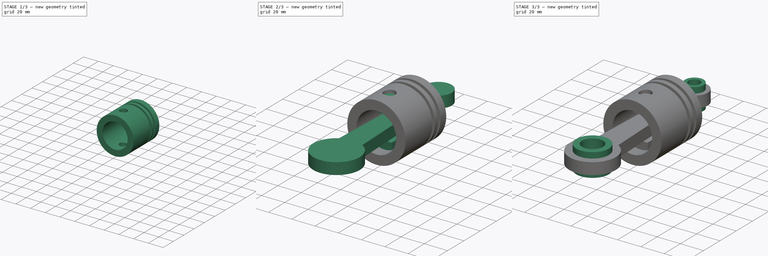
[diagram: build sequence overview — one tinted view per stage of 3, left to right]
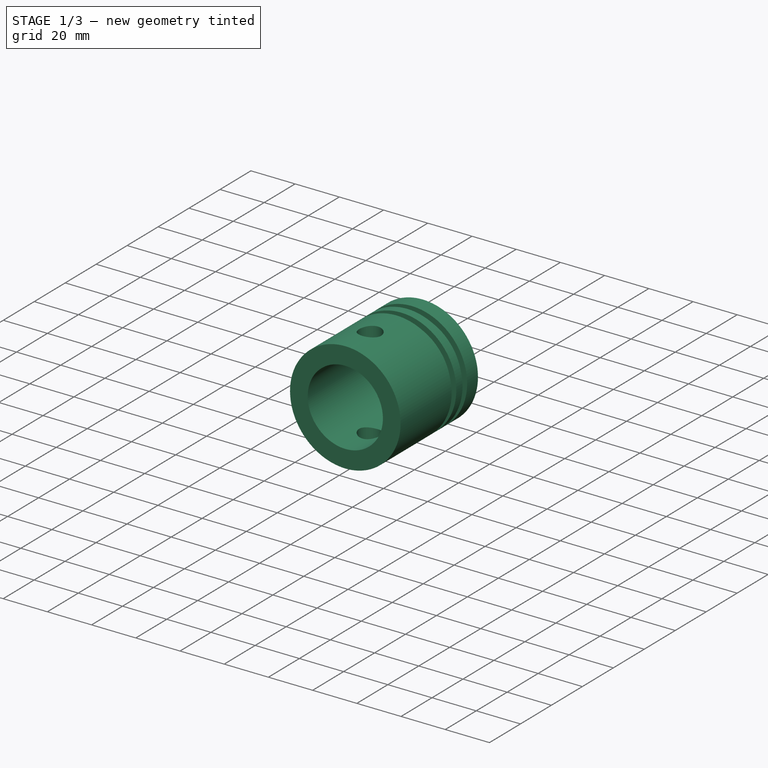
[diagram: stage 1 of 3 — iso view after this stage's code; geometry added in this stage tinted green]
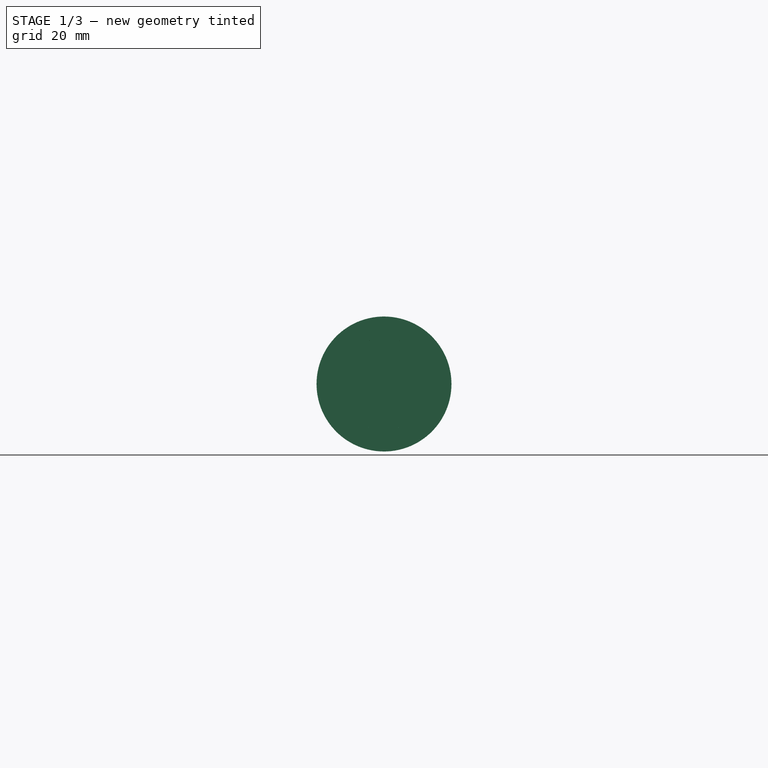
[diagram: stage 1 of 3 — front view after this stage's code; geometry added in this stage tinted green]
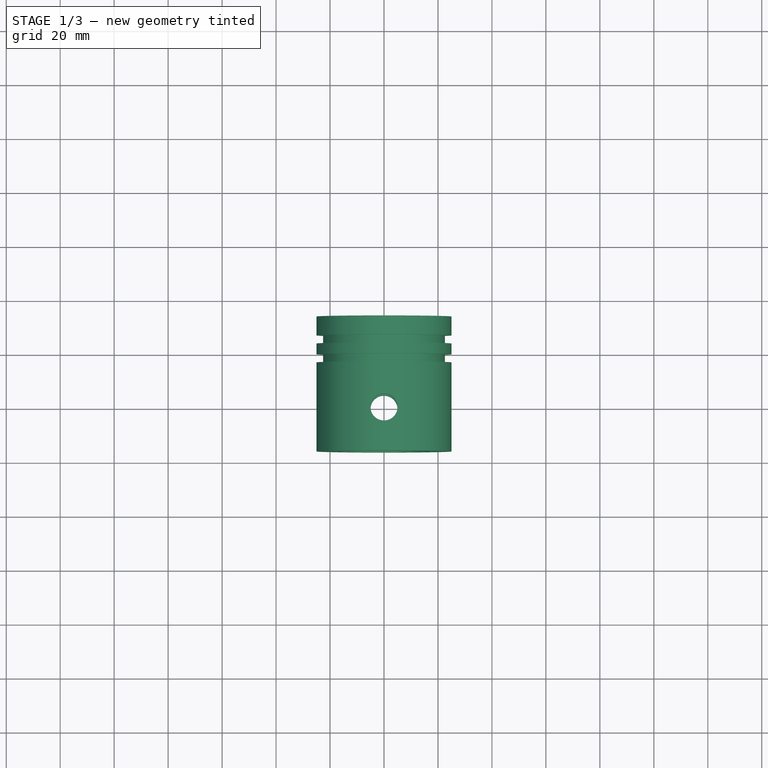
[diagram: stage 1 of 3 — top view after this stage's code; geometry added in this stage tinted green]
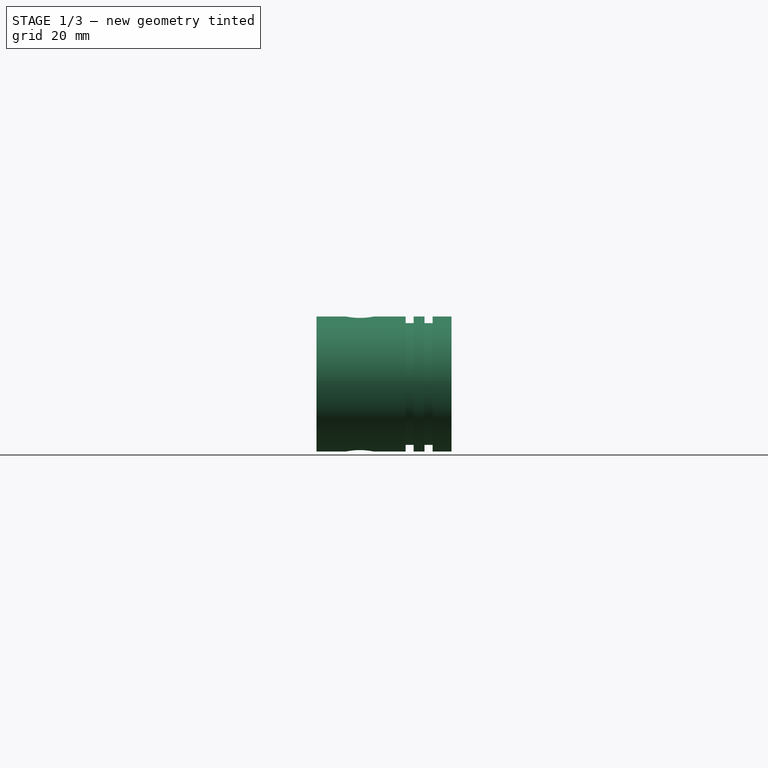
[diagram: stage 1 of 3 — right view after this stage's code; geometry added in this stage tinted green]
FCSTD DOCUMENT  (FreeCAD 0.19R24267 +148 (Git))
Label: Piston 2
License: All rights reserved
LicenseURL: http://en.wikipedia.org/wiki/All_rights_reserved
objects: Sketcher::SketchObject×7, PartDesign::Pocket×3, PartDesign::Pad×3, PartDesign::Plane×2, PartDesign::Body×2, PartDesign::Revolution×1
note: 25 computed .brp shape members not serialized (recipe doc carries the construction recipe); baked Part::Feature solids carry a one-line shape summary decoded from their .brp

FEATURE [Sketcher::SketchObject] Sketch
  FullyConstrained = false
  MapMode = 5
  Support = -> [XY_Plane]
  sketch-geometry (14):
    g0: LineSegment StartX=-17 StartY=-16.0624 StartZ=0 EndX=-25 EndY=-16.0624 EndZ=0
    g1: LineSegment StartX=-25 StartY=-16.0624 StartZ=0 EndX=-25 EndY=16.9376 EndZ=0
    g2: LineSegment StartX=-25 StartY=33.9376 StartZ=0 EndX=3.6e-15 EndY=33.9376 EndZ=0
    g3: LineSegment StartX=3.6e-15 StartY=33.9376 StartZ=0 EndX=3.6e-15 EndY=27.9376 EndZ=0
    g4: LineSegment StartX=-25 StartY=26.9376 StartZ=0 EndX=-22.5558 EndY=26.9376 EndZ=0
    g5: LineSegment StartX=-22.5558 StartY=26.9376 StartZ=0 EndX=-22.5558 EndY=23.9376 EndZ=0
    g6: LineSegment StartX=-22.5558 StartY=23.9376 StartZ=0 EndX=-25 EndY=23.9376 EndZ=0
    g7: LineSegment StartX=-25 StartY=19.9376 StartZ=0 EndX=-22.5558 EndY=19.9376 EndZ=0
    g8: LineSegment StartX=-22.5558 StartY=19.9376 StartZ=0 EndX=-22.5558 EndY=16.9376 EndZ=0
    g9: LineSegment StartX=-22.5558 StartY=16.9376 StartZ=0 EndX=-25 EndY=16.9376 EndZ=0
    g10: LineSegment StartX=-17 StartY=-16.0624 StartZ=0 EndX=-17 EndY=27.9376 EndZ=0
    g11: LineSegment StartX=-17 StartY=27.9376 StartZ=0 EndX=3.6e-15 EndY=27.9376 EndZ=0
    g12: LineSegment StartX=-25 StartY=26.9376 StartZ=0 EndX=-25 EndY=33.9376 EndZ=0
    g13: LineSegment StartX=-25 StartY=19.9376 StartZ=0 EndX=-25 EndY=23.9376 EndZ=0
  constraints (37):
    c: Coincident(g0,g1)
    c: Coincident(g12,g2)
    c: Coincident(g2,g3)
    c: Horizontal(g0)
    c: Horizontal(g2)
    c: Vertical(g1)
    c: Vertical(g3)
    c: Distance(g1) = 33
    c: Distance(g2) = 25
    c: Coincident(g4,g5)
    c: Coincident(g5,g6)
    c: Horizontal(g4)
    c: Horizontal(g6)
    c: Vertical(g5)
    c: Coincident(g7,g8)
    c: Coincident(g8,g9)
    c: Horizontal(g7)
    c: Horizontal(g9)
    c: Vertical(g8)
    c: Vertical(g5,g7)
    c: Distance(g5) = 3
    c: Distance(g8) = 3
    c: Coincident(g10,g11)
    c: Horizontal(g11)
    c: Vertical(g10)
    c: Coincident(g10,g0)
    c: Coincident(g11,g3)
    c: Coincident(g13,g6)
    c: Coincident(g12,g4)
    c: Tangent(g1,g12)
    c: Coincident(g1,g9)
    c: Coincident(g13,g7)
    c: Tangent(g1,g13)
    c: DistanceX(g0,g-1) = 17
    c: Distance(g3) = 6
    c: DistanceY(g0,g2) = 50
    c: Distance(g13) = 4
FEATURE [PartDesign::Revolution] Revolution
  Angle = 360
  Axis = (0,1,0)
  Base = (0,0,0)
  Profile = -> Sketch
  ReferenceAxis = -> Sketch [V_Axis]
FEATURE [Sketcher::SketchObject] Sketch001
  FullyConstrained = true
  MapMode = 5
  Support = -> [XY_Plane]
  sketch-geometry (1):
    g0: Circle CenterX=0 CenterY=0 CenterZ=0 NormalX=0 NormalY=0 NormalZ=1 AngleXU=0 Radius=5
  constraints (2):
    c: Coincident(g0,g-1)
    c: Diameter(g0) = 10
FEATURE [PartDesign::Pocket] Pocket
  BaseFeature = -> Revolution
  Length = 80
  Length2 = 100
  Midplane = true
  Profile = -> Sketch001
  Reversed = true
  Type = 1
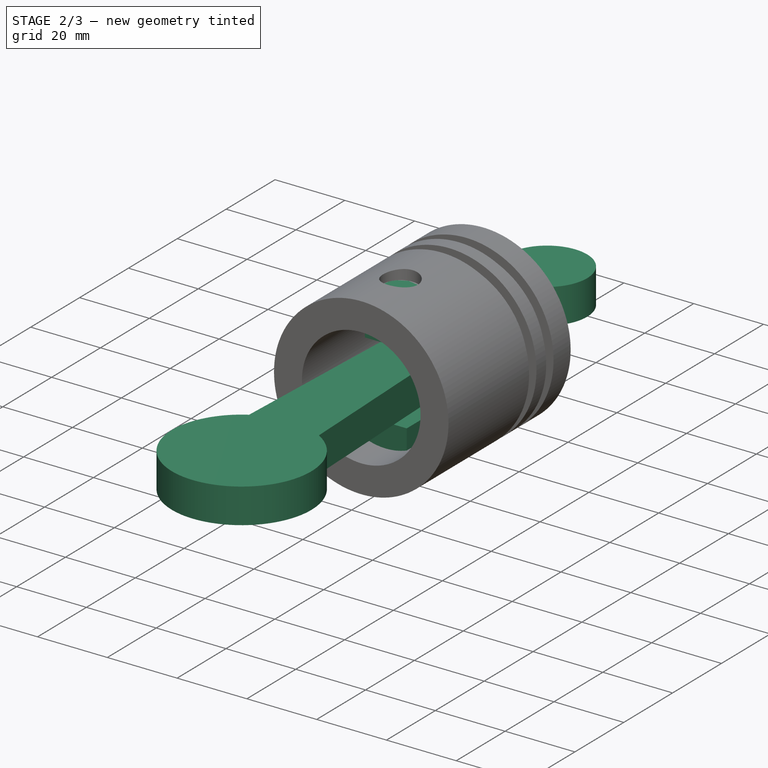
[diagram: stage 2 of 3 — iso view after this stage's code; geometry added in this stage tinted green]
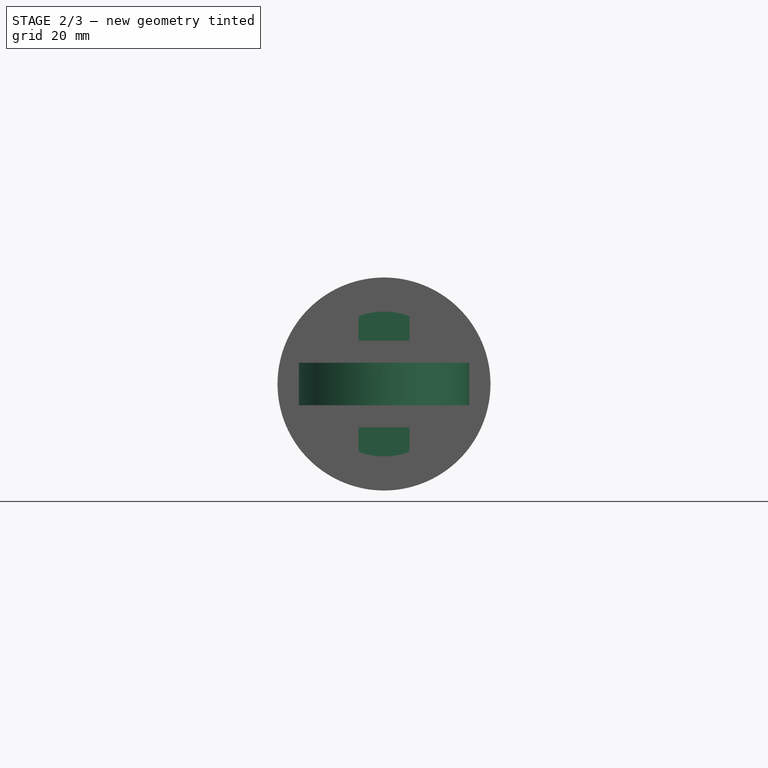
[diagram: stage 2 of 3 — front view after this stage's code; geometry added in this stage tinted green]
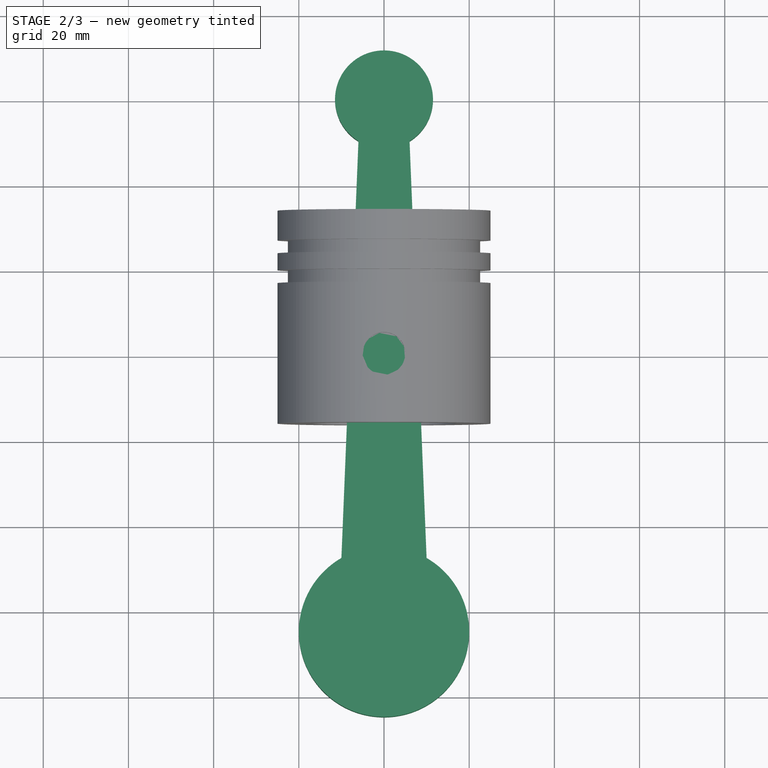
[diagram: stage 2 of 3 — top view after this stage's code; geometry added in this stage tinted green]
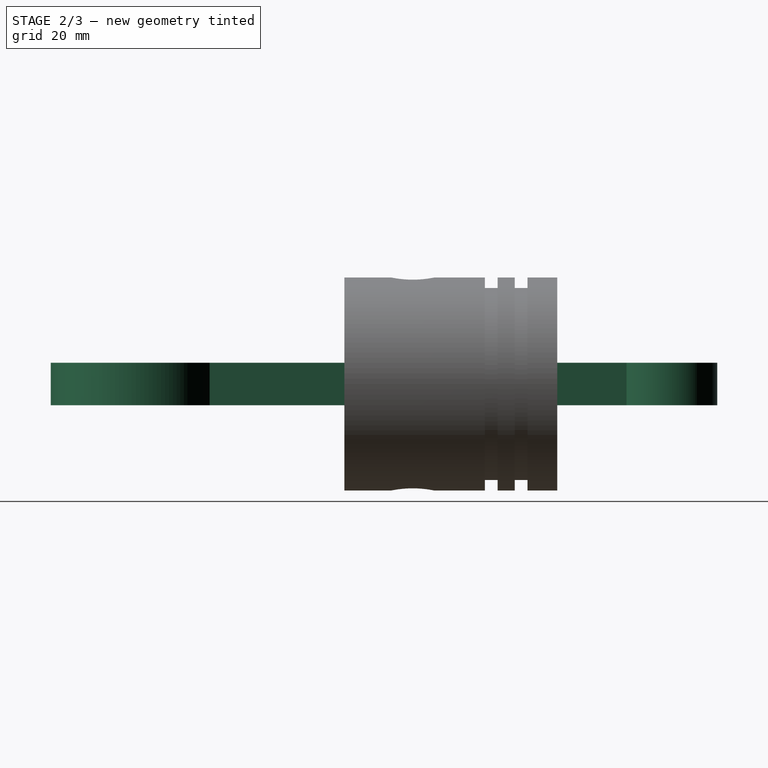
[diagram: stage 2 of 3 — right view after this stage's code; geometry added in this stage tinted green]
FEATURE [Sketcher::SketchObject] Sketch002
  FullyConstrained = true
  MapMode = 5
  Support = -> [XY_Plane001]
  sketch-geometry (4):
    g0: ArcOfCircle CenterX=-1.5e-15 CenterY=60 CenterZ=0 NormalX=0 NormalY=0 NormalZ=1 AngleXU=0 Radius=11.5 StartAngle=5.26128 EndAngle=10.4467
    g1: ArcOfCircle CenterX=2e-16 CenterY=-65 CenterZ=0 NormalX=0 NormalY=0 NormalZ=1 AngleXU=0 Radius=20 StartAngle=2.0944 EndAngle=7.33038
    g2: LineSegment StartX=6 StartY=50.1893 StartZ=0 EndX=10 EndY=-47.6795 EndZ=0
    g3: LineSegment StartX=-6 StartY=50.1893 StartZ=0 EndX=-10 EndY=-47.6795 EndZ=0
  constraints (12):
    c: Diameter(g1) = 40
    c: Diameter(g0) = 23
    c: Coincident(g0,g2)
    c: Coincident(g0,g3)
    c: Coincident(g1,g3)
    c: Coincident(g1,g2)
    c: Symmetric(g0,g0,g-2)
    c: Symmetric(g1,g1,g-2)
    c: DistanceY(g1,g0) = 125
    c: DistanceX(g1,g1) = 20
    c: DistanceX(g0,g0) = 12
    c: DistanceY(g-1,g0) = 60
FEATURE [PartDesign::Pad] Pad
  Direction = (1,1,1)
  Length = 10
  Length2 = 100
  Midplane = true
  Profile = -> Sketch002
  Type = 0
FEATURE [PartDesign::Body] Body001  label="Rod"
  Group = -> [Sketch002,Pad,DatumPlane,Sketch003,Pad001,Sketch004,Pocket001]
  Origin = -> Origin001
  Tip = -> Pocket001
FEATURE [Sketcher::SketchObject] Sketch005
  AttachmentOffset = pos=(0,0,22) rot=(0,0,1;0rad)
  FullyConstrained = true
  MapMode = 5
  Placement = pos=(0,0,22) rot=(0,0,1;0rad)
  Support = -> [XY_Plane]
  sketch-geometry (4):
    g0: LineSegment StartX=-6 StartY=6 StartZ=0 EndX=6 EndY=6 EndZ=0
    g1: LineSegment StartX=6 StartY=6 StartZ=0 EndX=6 EndY=-6 EndZ=0
    g2: LineSegment StartX=6 StartY=-6 StartZ=0 EndX=-6 EndY=-6 EndZ=0
    g3: LineSegment StartX=-6 StartY=-6 StartZ=0 EndX=-6 EndY=6 EndZ=0
  constraints (11):
    c: Coincident(g0,g1)
    c: Coincident(g1,g2)
    c: Coincident(g2,g3)
    c: Coincident(g3,g0)
    c: Horizontal(g0)
    c: Horizontal(g2)
    c: Vertical(g1)
    c: Vertical(g3)
    c: Distance(g3) = 12
    c: Symmetric(g0,g1,g-1)
    c: Distance(g0) = 12
FEATURE [PartDesign::Pad] Pad002
  BaseFeature = -> Pocket
  Direction = (1,1,1)
  Length = 44
  Length2 = 100
  Profile = -> Sketch005
  Reversed = true
  Type = 0
FEATURE [PartDesign::Plane] DatumPlane001
  Length = 60
  MapMode = 5
  Placement = pos=(0,-6,0) rot=(1,0,0;1.5708rad)
  ResizeMode = 0
  Support = -> [Pad002]
  Width = 60
FEATURE [Sketcher::SketchObject] Sketch006
  AttachmentOffset = pos=(0,0,10) rot=(0,0,1;0rad)
  FullyConstrained = false
  MapMode = 5
  Placement = pos=(0,-10,2.2e-15) rot=(1,0,0;1.5708rad)
  Support = -> [XZ_Plane]
  sketch-geometry (4):
    g0: LineSegment StartX=-10.2463 StartY=10.1817 StartZ=0 EndX=10.2463 EndY=10.1817 EndZ=0
    g1: LineSegment StartX=10.2463 StartY=10.1817 StartZ=0 EndX=10.2463 EndY=-10.1817 EndZ=0
    g2: LineSegment StartX=10.2463 StartY=-10.1817 StartZ=0 EndX=-10.2463 EndY=-10.1817 EndZ=0
    g3: LineSegment StartX=-10.2463 StartY=-10.1817 StartZ=0 EndX=-10.2463 EndY=10.1817 EndZ=0
  constraints (9):
    c: Coincident(g0,g1)
    c: Coincident(g1,g2)
    c: Coincident(g2,g3)
    c: Coincident(g3,g0)
    c: Horizontal(g0)
    c: Horizontal(g2)
    c: Vertical(g1)
    c: Vertical(g3)
    c: Symmetric(g1,g0,g-1)
FEATURE [PartDesign::Pocket] Pocket002
  BaseFeature = -> Pad002
  Length = 16
  Length2 = 100
  Profile = -> Sketch006
  Type = 0
FEATURE [PartDesign::Body] Body  label="Head"
  Group = -> [Sketch,Revolution,Sketch001,Pocket,Sketch005,Pad002,DatumPlane001,Sketch006,Pocket002]
  Origin = -> Origin
  Tip = -> Pocket002
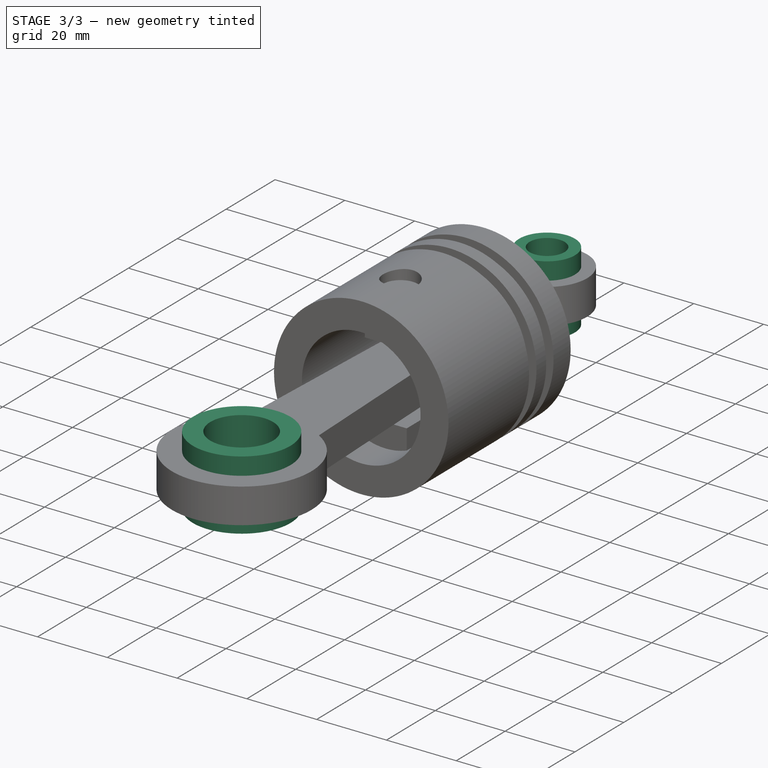
[diagram: stage 3 of 3 — iso view after this stage's code; geometry added in this stage tinted green]
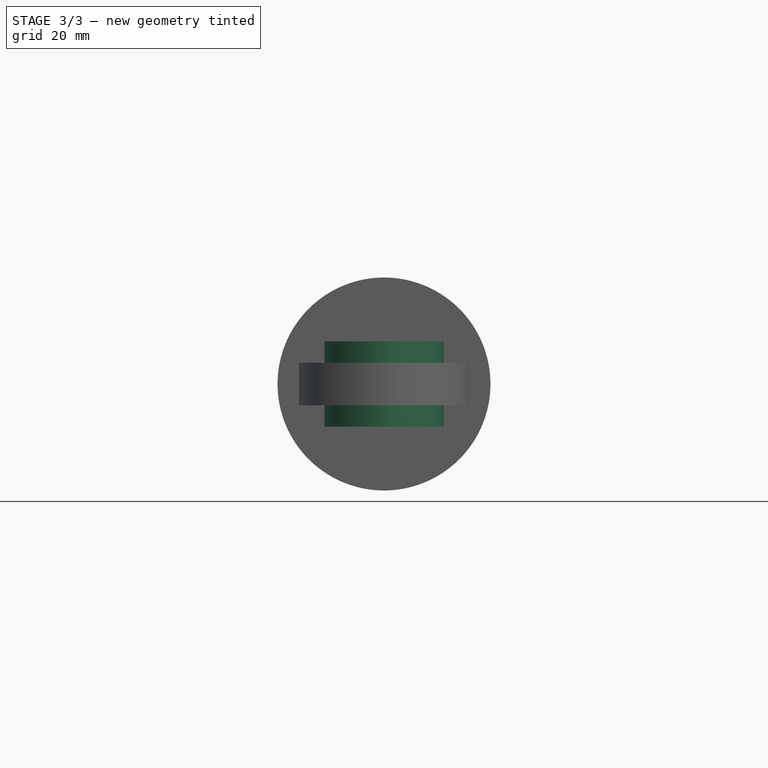
[diagram: stage 3 of 3 — front view after this stage's code; geometry added in this stage tinted green]
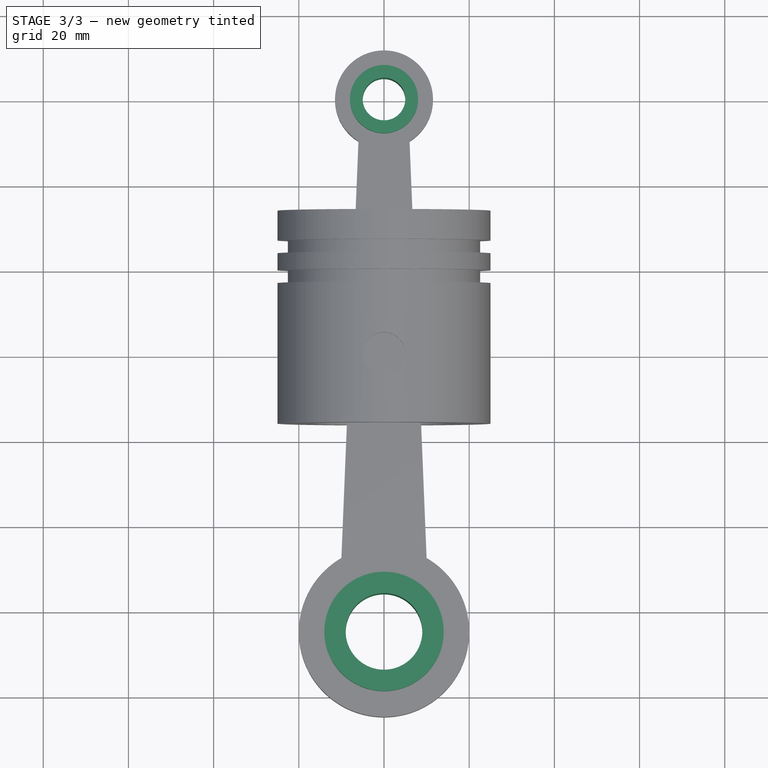
[diagram: stage 3 of 3 — top view after this stage's code; geometry added in this stage tinted green]
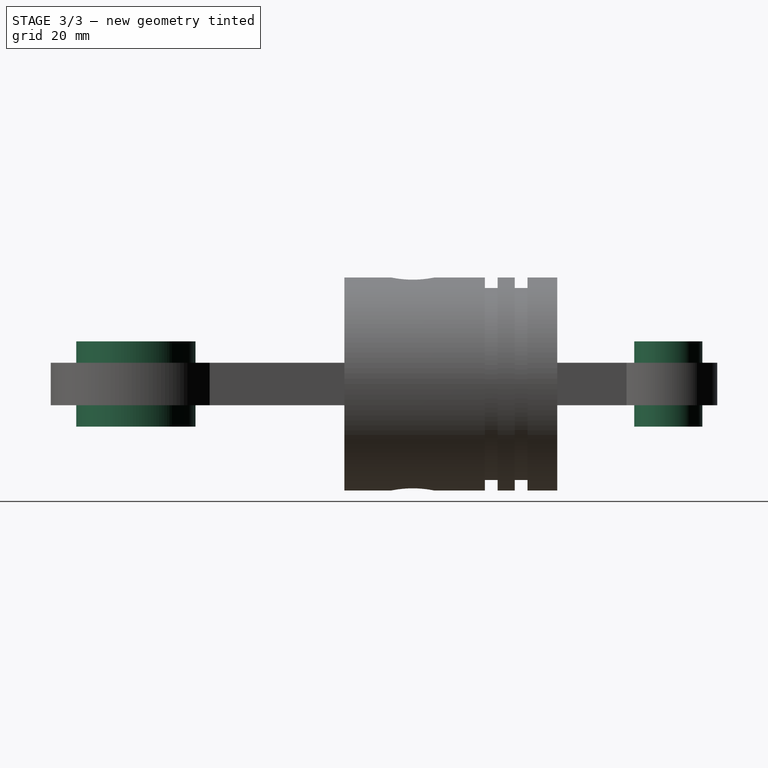
[diagram: stage 3 of 3 — right view after this stage's code; geometry added in this stage tinted green]
FEATURE [Sketcher::SketchObject] Sketch003
  ExternalGeometry = -> [Pad]
  FullyConstrained = false
  MapMode = 5
  Support = -> [XY_Plane001]
  sketch-geometry (2):
    g0: Circle CenterX=0 CenterY=60 CenterZ=0 NormalX=0 NormalY=0 NormalZ=1 AngleXU=0 Radius=8
    g1: Circle CenterX=0 CenterY=-65 CenterZ=0 NormalX=0 NormalY=0 NormalZ=1 AngleXU=0 Radius=14
  constraints (3):
    c: Coincident(g0,g-3)
    c: Diameter(g0) = 16
    c: Diameter(g1) = 28
FEATURE [PartDesign::Plane] DatumPlane
  Length = 67.6869
  MapMode = 5
  Placement = pos=(0,0,5) rot=(0,0,1;0rad)
  ResizeMode = 0
  Support = -> [Pad]
  Width = 174.099
FEATURE [PartDesign::Pad] Pad001
  BaseFeature = -> Pad
  Direction = (1,1,1)
  Length = 20
  Length2 = 100
  Midplane = true
  Profile = -> Sketch003
  Type = 0
FEATURE [Sketcher::SketchObject] Sketch004
  ExternalGeometry = -> [Sketch003]
  FullyConstrained = true
  MapMode = 5
  Support = -> [XY_Plane001]
  sketch-geometry (2):
    g0: Circle CenterX=0 CenterY=60 CenterZ=0 NormalX=0 NormalY=0 NormalZ=1 AngleXU=0 Radius=5
    g1: Circle CenterX=0 CenterY=-65 CenterZ=0 NormalX=0 NormalY=0 NormalZ=1 AngleXU=0 Radius=9
  constraints (4):
    c: Coincident(g0,g-3)
    c: Diameter(g0) = 10
    c: Coincident(g1,g-4)
    c: Diameter(g1) = 18
FEATURE [PartDesign::Pocket] Pocket001
  BaseFeature = -> Pad001
  Length = 16
  Length2 = 100
  Midplane = true
  Profile = -> Sketch004
  Type = 1
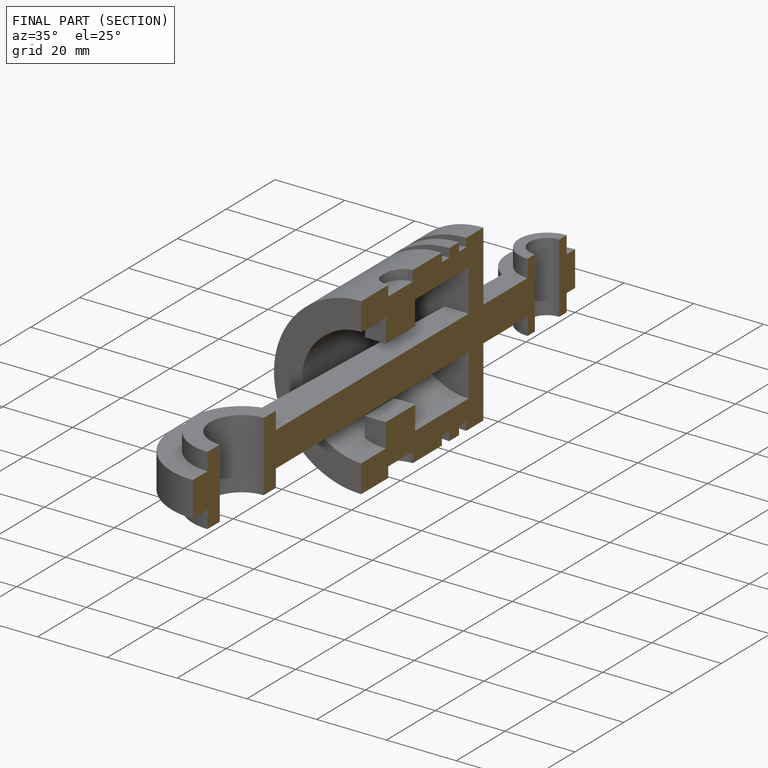
[diagram: finished part — half-section view (interior)]
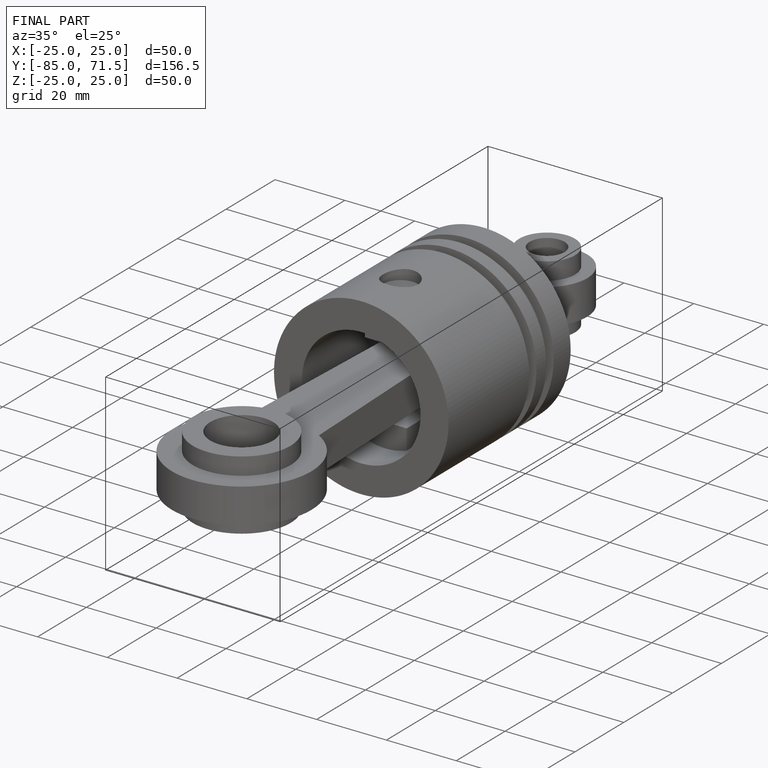
[diagram: finished part — iso view with bounding-box wireframe]
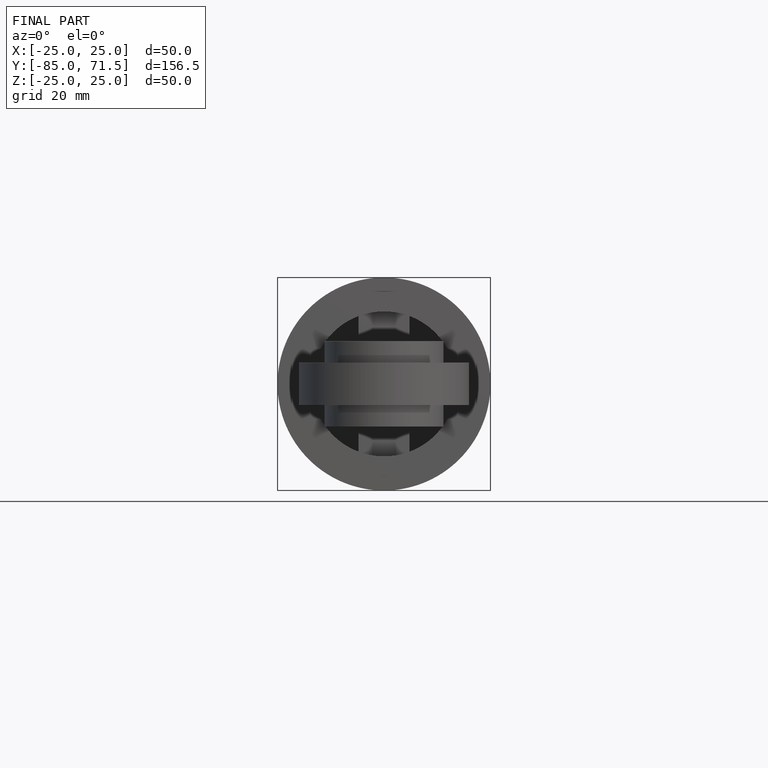
[diagram: finished part — front view with bounding-box wireframe]
